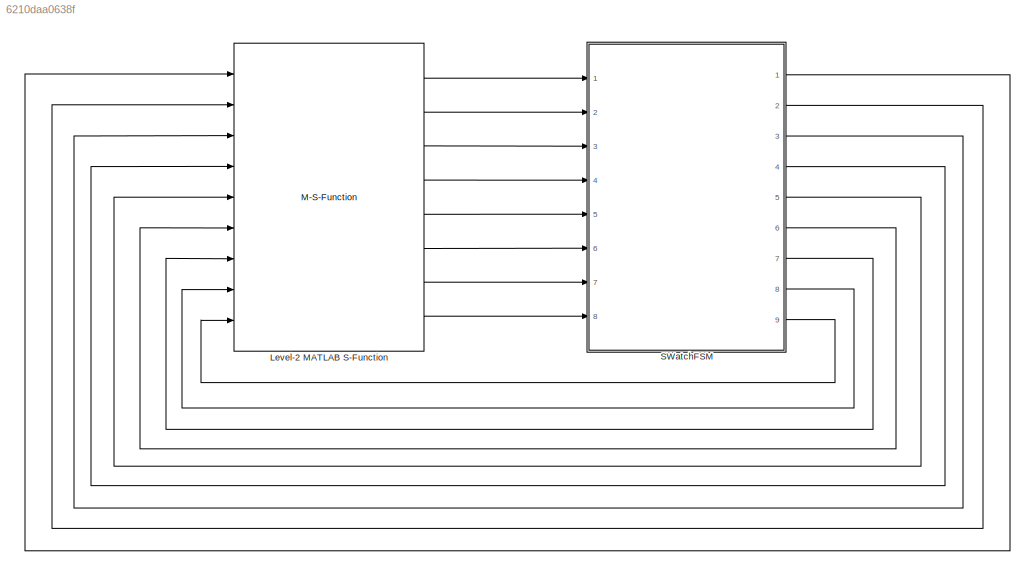
MODEL slx_6210daa0638f
KIND model
BLOCK [M-S-Function] Level-2 MATLAB S-Function
  FunctionName = WatchInterface
  Ports = [9, 8]
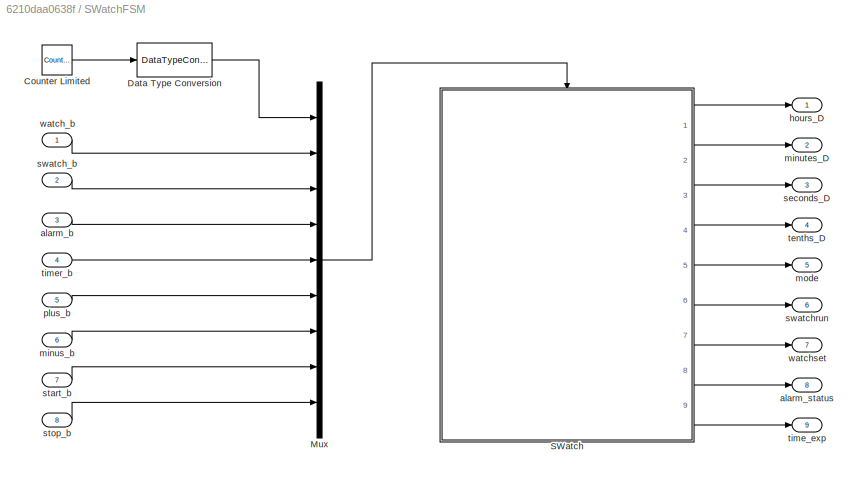
BLOCK [SubSystem] SWatchFSM
  Ports = [8, 9]
  RequestExecContextInheritance = off
BLOCK [Reference] SWatchFSM/Counter Limited  REF=simulink/Sources/Counter
Limited
  Ports = [0, 1]
  SourceBlock = simulink/Sources/Counter\nLimited
  SourceType = Counter Limited
  tsamp = 0.1
  uplimit = 1
BLOCK [DataTypeConversion] SWatchFSM/Data Type Conversion
  OutDataTypeStr = boolean
  RndMeth = Floor
  SaturateOnIntegerOverflow = off
BLOCK [Mux] SWatchFSM/Mux
  DisplayOption = bar
  Inputs = 9
  Ports = [9, 1]
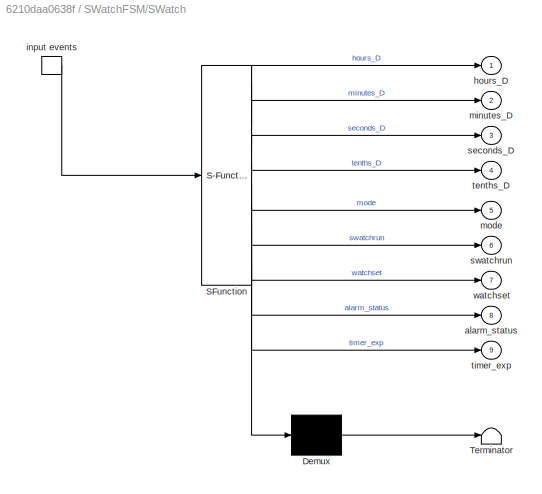
BLOCK [SubSystem] SWatchFSM/SWatch
  ErrorFcn = Stateflow.Translate.translate
  PermitHierarchicalResolution = ExplicitOnly
  Ports = [0, 9, 0, 1]
  RequestExecContextInheritance = off
  SFBlockType = Chart
  TreatAsAtomicUnit = on
BLOCK [Demux] SWatchFSM/SWatch/ Demux 
  Outputs = 1
  Ports = [1, 1]
BLOCK [S-Function] SWatchFSM/SWatch/ SFunction 
  EnableBusSupport = on
  FunctionName = sf_sfun
  PortCounts = [1 10]
  Ports = [1, 10]
  Tag = Stateflow S-Function SwatchModel 3
BLOCK [Terminator] SWatchFSM/SWatch/ Terminator 
BLOCK [TriggerPort] SWatchFSM/SWatch/ input events 
  Ports = [0, 1]
  ShowOutputPort = on
  StatesWhenEnabling = held
  TriggerType = either
BLOCK [Outport] SWatchFSM/SWatch/alarm_status
  IconDisplay = Port number
  Port = 8
BLOCK [Outport] SWatchFSM/SWatch/hours_D
  IconDisplay = Port number
BLOCK [Outport] SWatchFSM/SWatch/minutes_D
  IconDisplay = Port number
  Port = 2
BLOCK [Outport] SWatchFSM/SWatch/mode
  IconDisplay = Port number
  Port = 5
BLOCK [Outport] SWatchFSM/SWatch/seconds_D
  IconDisplay = Port number
  Port = 3
BLOCK [Outport] SWatchFSM/SWatch/swatchrun
  IconDisplay = Port number
  Port = 6
BLOCK [Outport] SWatchFSM/SWatch/tenths_D
  IconDisplay = Port number
  Port = 4
BLOCK [Outport] SWatchFSM/SWatch/timer_exp
  IconDisplay = Port number
  Port = 9
BLOCK [Outport] SWatchFSM/SWatch/watchset
  IconDisplay = Port number
  Port = 7
BLOCK [Inport] SWatchFSM/alarm_b
  IconDisplay = Port number
  Port = 3
BLOCK [Outport] SWatchFSM/alarm_status
  IconDisplay = Port number
  Port = 8
BLOCK [Outport] SWatchFSM/hours_D
  IconDisplay = Port number
BLOCK [Inport] SWatchFSM/minus_b
  IconDisplay = Port number
  Port = 6
BLOCK [Outport] SWatchFSM/minutes_D
  IconDisplay = Port number
  Port = 2
BLOCK [Outport] SWatchFSM/mode
  IconDisplay = Port number
  Port = 5
BLOCK [Inport] SWatchFSM/plus_b
  IconDisplay = Port number
  Port = 5
BLOCK [Outport] SWatchFSM/seconds_D
  IconDisplay = Port number
  Port = 3
BLOCK [Inport] SWatchFSM/start_b
  IconDisplay = Port number
  Port = 7
BLOCK [Inport] SWatchFSM/stop_b
  IconDisplay = Port number
  Port = 8
BLOCK [Inport] SWatchFSM/swatch_b
  IconDisplay = Port number
  Port = 2
BLOCK [Outport] SWatchFSM/swatchrun
  IconDisplay = Port number
  Port = 6
BLOCK [Outport] SWatchFSM/tenths_D
  IconDisplay = Port number
  Port = 4
BLOCK [Outport] SWatchFSM/time_exp
  IconDisplay = Port number
  Port = 9
BLOCK [Inport] SWatchFSM/timer_b
  IconDisplay = Port number
  Port = 4
BLOCK [Inport] SWatchFSM/watch_b
  IconDisplay = Port number
BLOCK [Outport] SWatchFSM/watchset
  IconDisplay = Port number
  Port = 7
LINE Level-2 MATLAB S-Function:1 -> SWatchFSM:1
LINE Level-2 MATLAB S-Function:2 -> SWatchFSM:2
LINE Level-2 MATLAB S-Function:3 -> SWatchFSM:3
LINE Level-2 MATLAB S-Function:4 -> SWatchFSM:4
LINE Level-2 MATLAB S-Function:5 -> SWatchFSM:5
LINE Level-2 MATLAB S-Function:6 -> SWatchFSM:6
LINE Level-2 MATLAB S-Function:7 -> SWatchFSM:7
LINE Level-2 MATLAB S-Function:8 -> SWatchFSM:8
LINE SWatchFSM/Counter Limited:1 -> SWatchFSM/Data Type Conversion:1
LINE SWatchFSM/Data Type Conversion:1 -> SWatchFSM/Mux:1
LINE SWatchFSM/Mux:1 -> SWatchFSM/SWatch:trigger
LINE SWatchFSM/SWatch:1 -> SWatchFSM/hours_D:1
LINE SWatchFSM/SWatch:2 -> SWatchFSM/minutes_D:1
LINE SWatchFSM/SWatch:3 -> SWatchFSM/seconds_D:1
LINE SWatchFSM/SWatch:4 -> SWatchFSM/tenths_D:1
LINE SWatchFSM/SWatch:5 -> SWatchFSM/mode:1
LINE SWatchFSM/SWatch:6 -> SWatchFSM/swatchrun:1
LINE SWatchFSM/SWatch:7 -> SWatchFSM/watchset:1
LINE SWatchFSM/SWatch:8 -> SWatchFSM/alarm_status:1
LINE SWatchFSM/SWatch:9 -> SWatchFSM/time_exp:1
LINE SWatchFSM/alarm_b:1 -> SWatchFSM/Mux:4
LINE SWatchFSM/minus_b:1 -> SWatchFSM/Mux:7
LINE SWatchFSM/plus_b:1 -> SWatchFSM/Mux:6
LINE SWatchFSM/start_b:1 -> SWatchFSM/Mux:8
LINE SWatchFSM/stop_b:1 -> SWatchFSM/Mux:9
LINE SWatchFSM/swatch_b:1 -> SWatchFSM/Mux:3
LINE SWatchFSM/timer_b:1 -> SWatchFSM/Mux:5
LINE SWatchFSM/watch_b:1 -> SWatchFSM/Mux:2
LINE SWatchFSM:1 -> Level-2 MATLAB S-Function:1
LINE SWatchFSM:2 -> Level-2 MATLAB S-Function:2
LINE SWatchFSM:3 -> Level-2 MATLAB S-Function:3
LINE SWatchFSM:4 -> Level-2 MATLAB S-Function:4
LINE SWatchFSM:5 -> Level-2 MATLAB S-Function:5
LINE SWatchFSM:6 -> Level-2 MATLAB S-Function:6
LINE SWatchFSM:7 -> Level-2 MATLAB S-Function:7
LINE SWatchFSM:8 -> Level-2 MATLAB S-Function:8
LINE SWatchFSM:9 -> Level-2 MATLAB S-Function:9
CHART SWatchFSM/SWatch states=33 transitions=98
  STATE_LABEL 'Mode_mng'
  STATE_LABEL 'watch_m\nen:mode = uint8(0)\nexit: watchset = uint8(0)'
  STATE_LABEL 'watch_showtime'
  STATE_LABEL 'watch_settime\nen: hours_D = hours_W;\n minutes_D = minutes_W;\n seconds_D = uint8(0);'
  STATE_LABEL 'watch_sethours\nen: hours_D = hours_W'
  STATE_LABEL 'watch_setminutes\nen: minutes_D = minutes_W'
  STATE_LABEL 'plus_b{minutes_W = mod(minutes_W + 1,  60);}'
  STATE_LABEL 'plus_b{hours_W = mod(hours_W + 1,  24);}'
  STATE_LABEL 'watch_b'
  STATE_LABEL 'watch_b {seconds_W = uint8(0); \ntenths_W = uint8(0);\nwatchset = uint8(0);}'
  STATE_LABEL 'minus_b{minutes_W = mod(minutes_W - 1, 60)}'
  STATE_LABEL 'minus_b{hours_W = mod(hours_W - 1, 24)}'
  STATE_LABEL 'tick_t{hours_D = hours_W; \nminutes_D = minutes_W; \nseconds_D = seconds_W; \ntenths_D = tenths_W}'
  STATE_LABEL '{watchset = uint8(0);}'
  STATE_LABEL 'watch_b {seconds_W = uint8(0); \ntenths_W = uint8(0);\nwatchset = uint8(0);}'
  STATE_LABEL 'watch_b{watchset = uint8(1);}'
  STATE_LABEL 'watch_b {seconds_W = uint8(0); \ntenths_W = uint8(0);\nwatchset = uint8(0);}'
  STATE_LABEL 'swatch_m\nen:mode = uint8(1);hours_D = hours_S; minutes_D = minutes_S;\nseconds_D = seconds_S; tenths_D = tenths_S;\nduring: hours_D = hours_S; minutes_D = minutes_S;\n seconds_D = seconds_S; tenths_D = tenths_S;'
  STATE_LABEL 'swatch_stop'
  STATE_LABEL 'swatch_running'
  STATE_LABEL 'swatch_pause'
  STATE_LABEL 'start_b{swatchrun = uint8(1)}'
  STATE_LABEL 'start_b{swatchrun = uint8(1)}'
  STATE_LABEL 'stop_b{swatchrun = uint8(0);}'
  STATE_LABEL 'stop_b{swatchrun = uint8(2)}'
  STATE_LABEL 'H'
  STATE_LABEL 'alarm_m\nen:mode = uint8(2);\nhours_D = hours_A;\nminutes_D = minutes_A;'
  STATE_LABEL 'alarm_set\nen: hours_D = hours_A;\n minutes_D = minutes_A;'
  STATE_LABEL 'alarm_sethours\nen: hours_D = hours_A'
  STATE_LABEL 'alarm_setminutes\nen: minutes_D = minutes_A'
  STATE_LABEL 'plus_b{minutes_A = mod(minutes_A + 1,  60);}'
  STATE_LABEL 'plus_b{hours_A = mod(hours_A + 1,  24);}'
  STATE_LABEL 'alarm_b'
  STATE_LABEL 'alarm_b'
  STATE_LABEL 'minus_b{minutes_A = mod(minutes_A - 1, 60);}'
  STATE_LABEL 'minus_b{hours_A = mod(hours_A - 1, 24)}'
  STATE_LABEL 'alarm_running'
  STATE_LABEL 'start_b[hours_A > hours_W || (hours_A == hours_W && minutes_A > minutes_W)]\n{alarm_status = uint8(1);}'
  STATE_LABEL 'stop_b{hours_A = uint8(0); \nminutes_A = uint8(0)}'
  STATE_LABEL 'tick_t[alarm_cycle == uint8(0)]'
